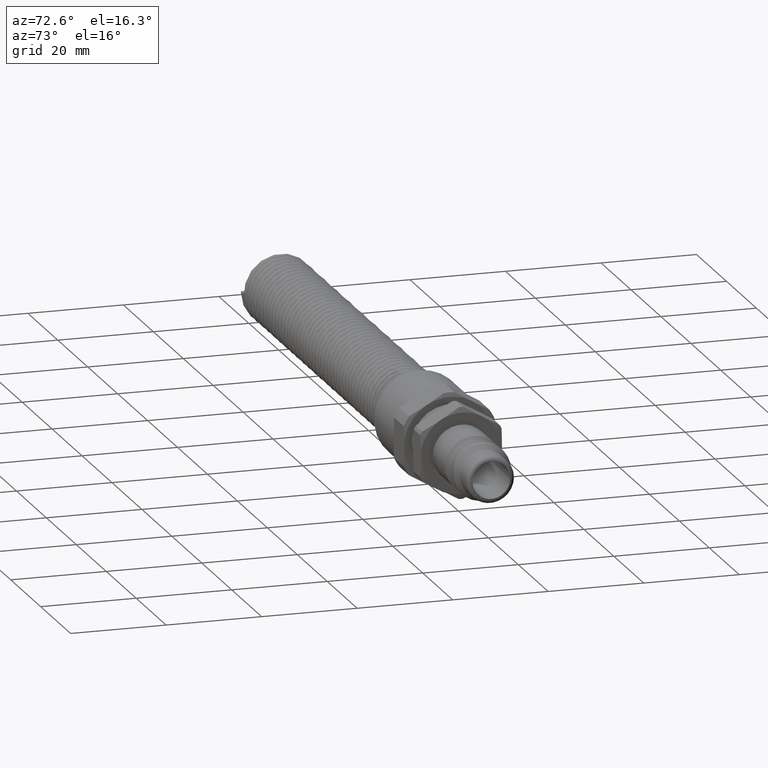
[diagram: clean part render]
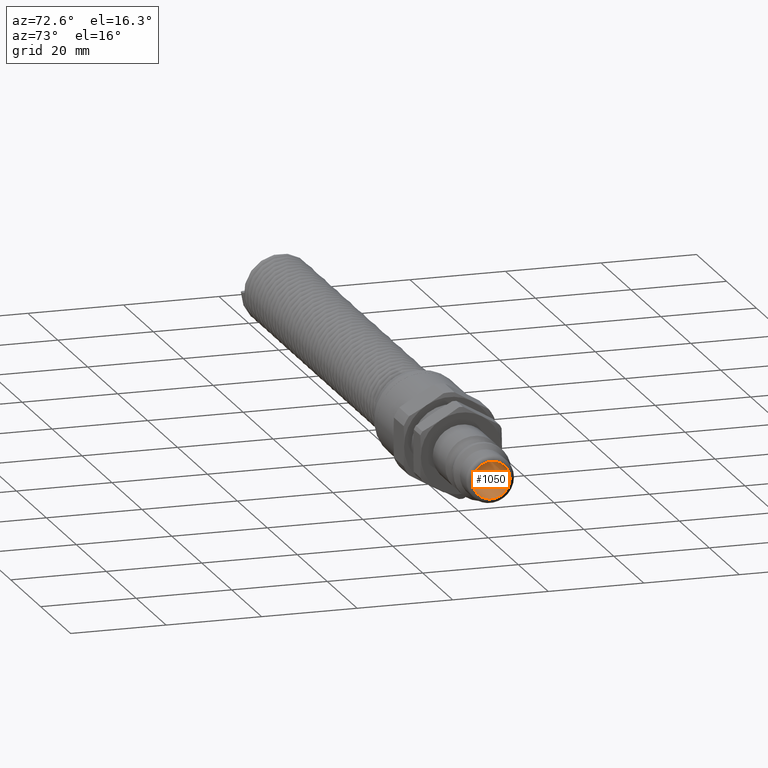
[diagram: same view with one face highlighted and labeled with its STEP entity id]
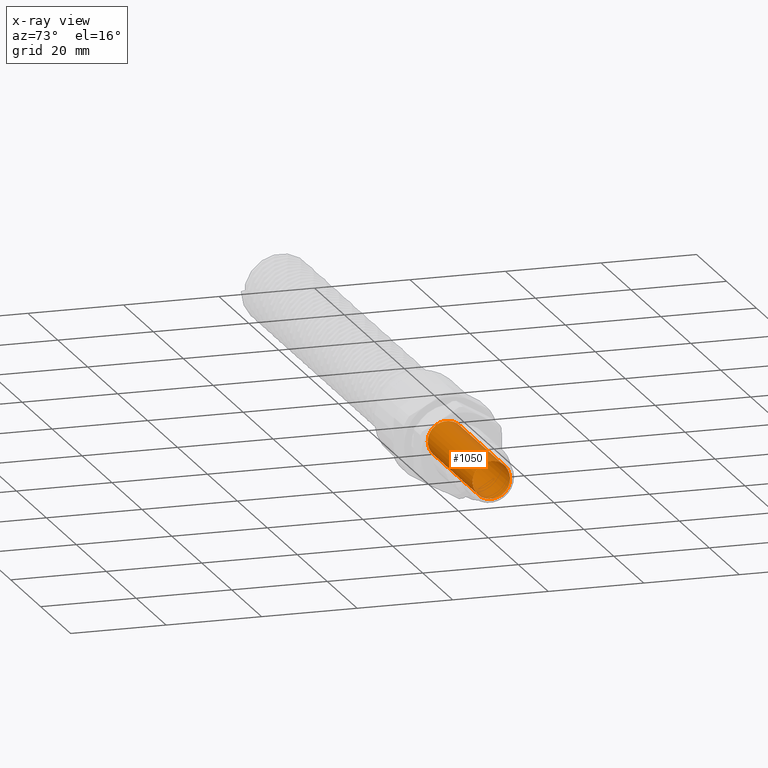
[diagram: x-ray of the same camera — body ghosted, the highlighted face saturated]
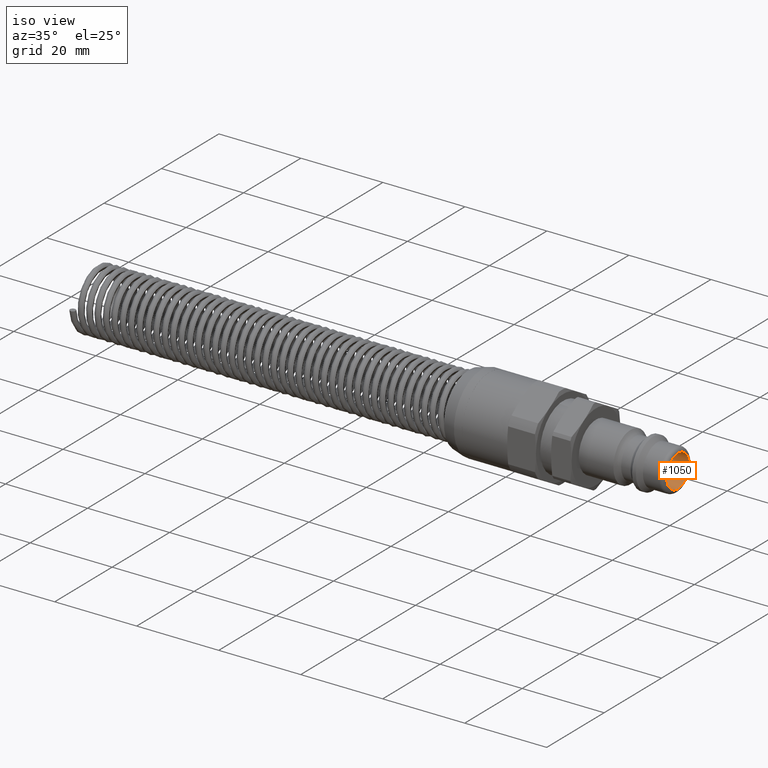
[diagram: same view with one face highlighted and labeled with its STEP entity id]
A machine part, auxiliary view. The second image highlights one B-rep face of the part: STEP entity #1050.
The next image is the same camera in x-ray: the body ghosted, the highlighted face saturated — about 0% of this face is hidden behind the body in this view.
A second angle (iso view) of the same face is appended — the face is thin or edge-on in the first view.
In plain terms, the highlighted cylindrical surface (bore or boss wall) has radius 3.925 mm, axis along (1, 0, 0).
Its self-contained STEP definition (entity closure, byte-faithful):
#1019=CARTESIAN_POINT('',(42.0,3.925000000000001,0.0));
#1020=VERTEX_POINT('',#1019);
#1021=CARTESIAN_POINT('',(42.0,0.0,0.0));
#1022=DIRECTION('',(1.0,0.0,0.0));
#1023=DIRECTION('',(0.0,1.0,0.0));
#1024=AXIS2_PLACEMENT_3D('',#1021,#1022,#1023);
#1025=CIRCLE('',#1024,3.925000000000001);
#1026=EDGE_CURVE('',#1020,#1020,#1025,.T.);
#1031=CARTESIAN_POINT('',(27.0,0.0,0.0));
#1032=DIRECTION('',(1.0,0.0,0.0));
#1033=DIRECTION('',(0.0,1.0,0.0));
#1034=AXIS2_PLACEMENT_3D('',#1031,#1032,#1033);
#1035=CYLINDRICAL_SURFACE('',#1034,3.925000000000000);
#1036=CARTESIAN_POINT('',(12.000000000000002,3.924999999999998,0.0));
#1037=VERTEX_POINT('',#1036);
#1038=CARTESIAN_POINT('',(12.000000000000002,0.0,0.0));
#1039=DIRECTION('',(1.0,0.0,0.0));
#1040=DIRECTION('',(0.0,1.0,0.0));
#1041=AXIS2_PLACEMENT_3D('',#1038,#1039,#1040);
#1042=CIRCLE('',#1041,3.924999999999998);
#1043=EDGE_CURVE('',#1037,#1037,#1042,.T.);
#1044=ORIENTED_EDGE('',*,*,#1043,.F.);
#1045=EDGE_LOOP('',(#1044));
#1046=FACE_OUTER_BOUND('',#1045,.T.);
#1047=ORIENTED_EDGE('',*,*,#1026,.T.);
#1048=EDGE_LOOP('',(#1047));
#1049=FACE_BOUND('',#1048,.T.);
#1050=ADVANCED_FACE('',(#1046,#1049),#1035,.F.);